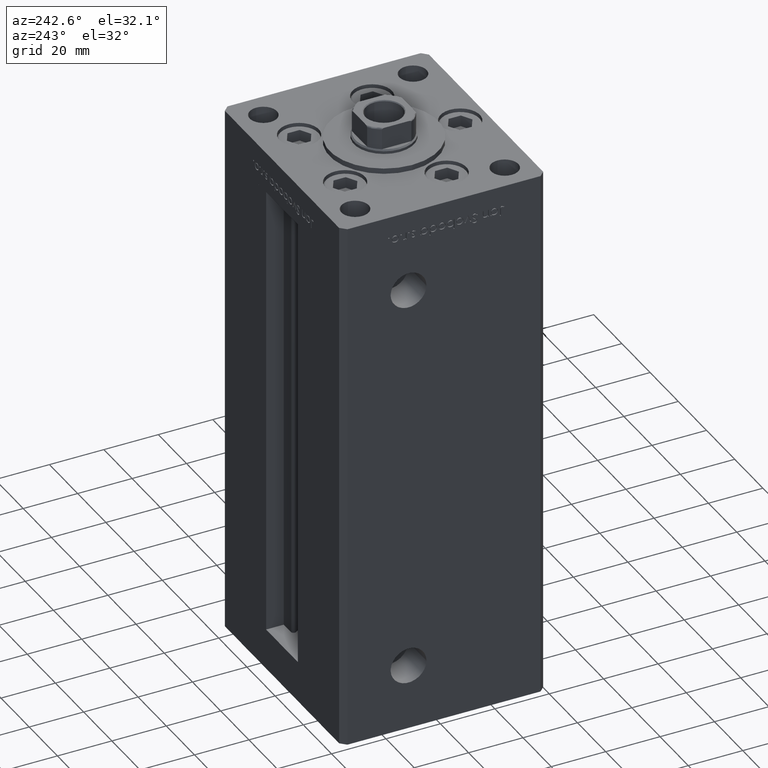
[diagram: clean part render]
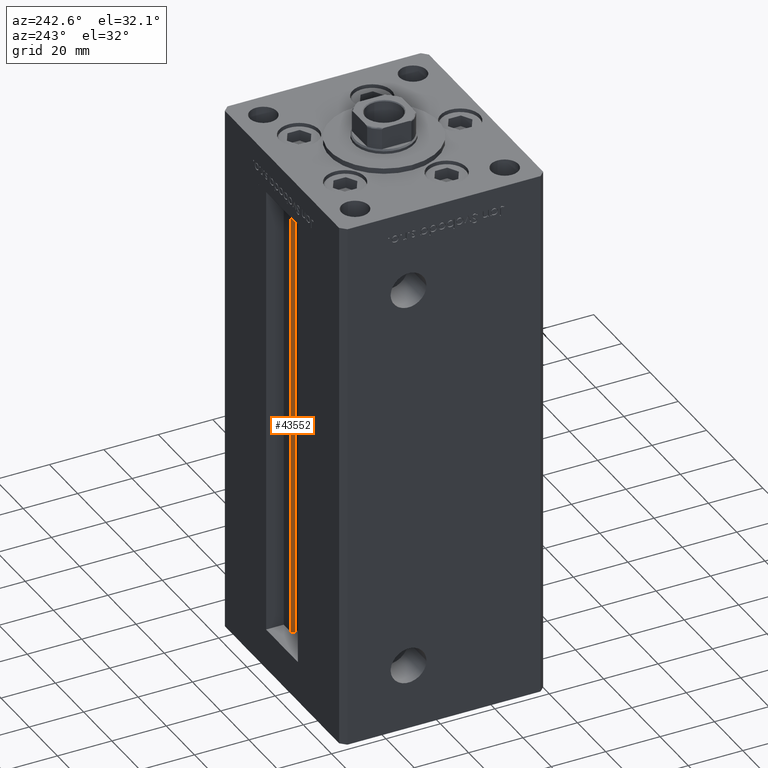
[diagram: same view with one face highlighted and labeled with its STEP entity id]
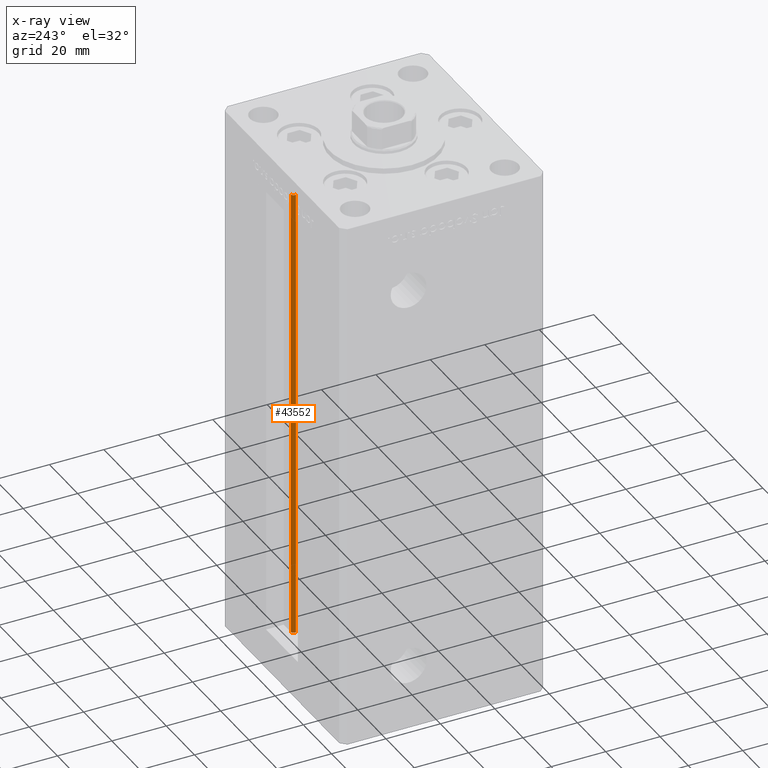
[diagram: x-ray of the same camera — body ghosted, the highlighted face saturated]
A machine part, auxiliary view. The second image highlights one B-rep face of the part: STEP entity #43552.
The next image is the same camera in x-ray: the body ghosted, the highlighted face saturated — about 0% of this face is hidden behind the body in this view.
In plain terms, the highlighted cylindrical surface (edge-blend (fillet) strip) has radius 0.9333 mm, axis along (0, 0, 1).
Its self-contained STEP definition (entity closure, byte-faithful):
#1222 = ORIENTED_EDGE ( 'NONE', *, *, #21290, .T. ) ;
#3601 = AXIS2_PLACEMENT_3D ( 'NONE', #14620, #7222, #35182 ) ;
#6439 = CARTESIAN_POINT ( 'NONE',  ( 6.183333333333999704, 30.99999999999999289, 0.000000000000000000 ) ) ;
#7222 = DIRECTION ( 'NONE',  ( -0.000000000000000000, -0.000000000000000000, 1.000000000000000000 ) ) ;
#8219 = AXIS2_PLACEMENT_3D ( 'NONE', #28445, #20551, #36635 ) ;
#9375 = VERTEX_POINT ( 'NONE', #26470 ) ;
#10091 = CARTESIAN_POINT ( 'NONE',  ( 6.183333333333999704, 30.99999999999999289, 168.5000000000000000 ) ) ;
#11832 = CARTESIAN_POINT ( 'NONE',  ( 5.375042956467943611, 29.59999999999899245, 0.000000000000000000 ) ) ;
#12931 = CIRCLE ( 'NONE', #19666, 0.9333333333340015914 ) ;
#14620 = CARTESIAN_POINT ( 'NONE',  ( 6.183333333333999704, 30.06666666666599141, 0.000000000000000000 ) ) ;
#15273 = EDGE_CURVE ( 'NONE', #38224, #9375, #29241, .T. ) ;
#16124 = ORIENTED_EDGE ( 'NONE', *, *, #41123, .F. ) ;
#17110 = CARTESIAN_POINT ( 'NONE',  ( 5.375042956467943611, 29.59999999999899245, 0.000000000000000000 ) ) ;
#17719 = ORIENTED_EDGE ( 'NONE', *, *, #15273, .T. ) ;
#18414 = DIRECTION ( 'NONE',  ( 0.000000000000000000, 0.000000000000000000, -1.000000000000000000 ) ) ;
#19666 = AXIS2_PLACEMENT_3D ( 'NONE', #22625, #18414, #38713 ) ;
#20551 = DIRECTION ( 'NONE',  ( -0.000000000000000000, -0.000000000000000000, -1.000000000000000000 ) ) ;
#21290 = EDGE_CURVE ( 'NONE', #9375, #37711, #12931, .T. ) ;
#22526 = FACE_OUTER_BOUND ( 'NONE', #43257, .T. ) ;
#22625 = CARTESIAN_POINT ( 'NONE',  ( 6.183333333333999704, 30.06666666666599141, 168.5000000000000000 ) ) ;
#23305 = LINE ( 'NONE', #6439, #44799 ) ;
#26470 = CARTESIAN_POINT ( 'NONE',  ( 5.375042956467944499, 29.59999999999898890, 168.5000000000000000 ) ) ;
#28445 = CARTESIAN_POINT ( 'NONE',  ( 6.183333333333999704, 30.06666666666599141, 0.000000000000000000 ) ) ;
#29241 = LINE ( 'NONE', #17110, #36422 ) ;
#29581 = ORIENTED_EDGE ( 'NONE', *, *, #34318, .F. ) ;
#34318 = EDGE_CURVE ( 'NONE', #38224, #46283, #37702, .T. ) ;
#35182 = DIRECTION ( 'NONE',  ( 1.000000000000000000, 0.000000000000000000, 0.000000000000000000 ) ) ;
#36422 = VECTOR ( 'NONE', #36894, 1000.000000000000000 ) ;
#36635 = DIRECTION ( 'NONE',  ( 1.000000000000000000, 0.000000000000000000, 0.000000000000000000 ) ) ;
#36894 = DIRECTION ( 'NONE',  ( -0.000000000000000000, -0.000000000000000000, 1.000000000000000000 ) ) ;
#37702 = CIRCLE ( 'NONE', #8219, 0.9333333333340015914 ) ;
#37711 = VERTEX_POINT ( 'NONE', #10091 ) ;
#38224 = VERTEX_POINT ( 'NONE', #11832 ) ;
#38713 = DIRECTION ( 'NONE',  ( 1.000000000000000000, 0.000000000000000000, 0.000000000000000000 ) ) ;
#39688 = CARTESIAN_POINT ( 'NONE',  ( 6.183333333333999704, 30.99999999999999289, 0.000000000000000000 ) ) ;
#41123 = EDGE_CURVE ( 'NONE', #46283, #37711, #23305, .T. ) ;
#43257 = EDGE_LOOP ( 'NONE', ( #16124, #29581, #17719, #1222 ) ) ;
#43377 = DIRECTION ( 'NONE',  ( -0.000000000000000000, -0.000000000000000000, 1.000000000000000000 ) ) ;
#43552 = ADVANCED_FACE ( 'NONE', ( #22526 ), #46551, .T. ) ;
#44799 = VECTOR ( 'NONE', #43377, 1000.000000000000000 ) ;
#46283 = VERTEX_POINT ( 'NONE', #39688 ) ;
#46551 = CYLINDRICAL_SURFACE ( 'NONE', #3601, 0.9333333333340015914 ) ;